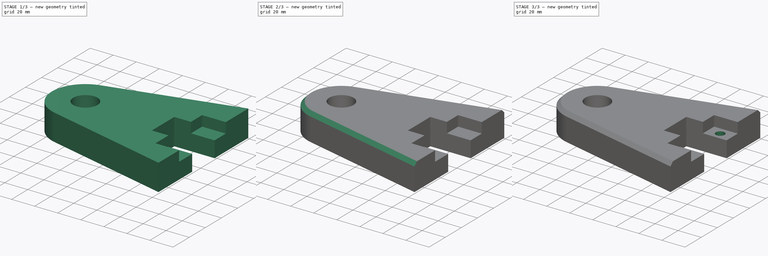
[diagram: build sequence overview — one tinted view per stage of 3, left to right]
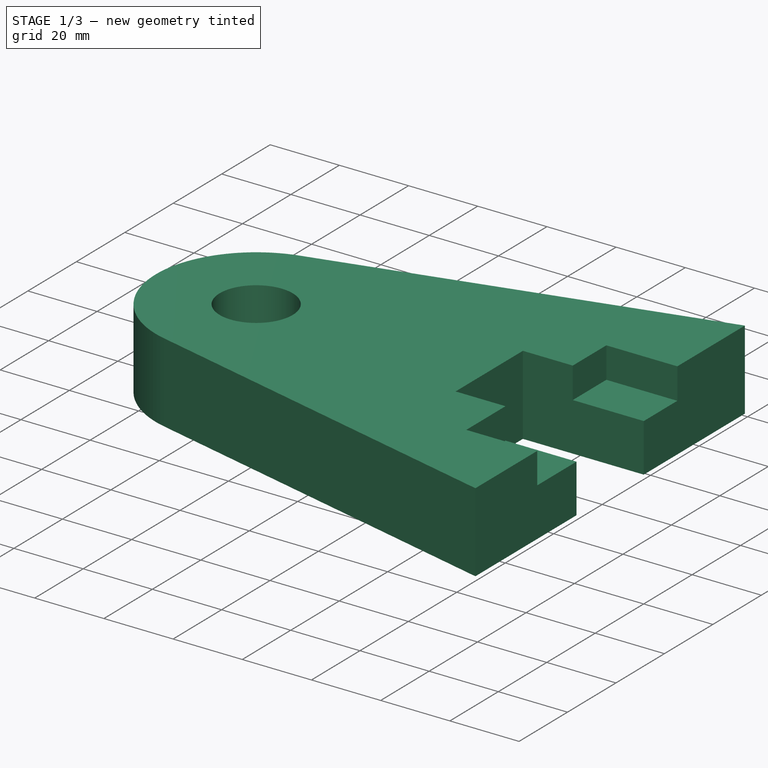
[diagram: stage 1 of 3 — iso view after this stage's code; geometry added in this stage tinted green]
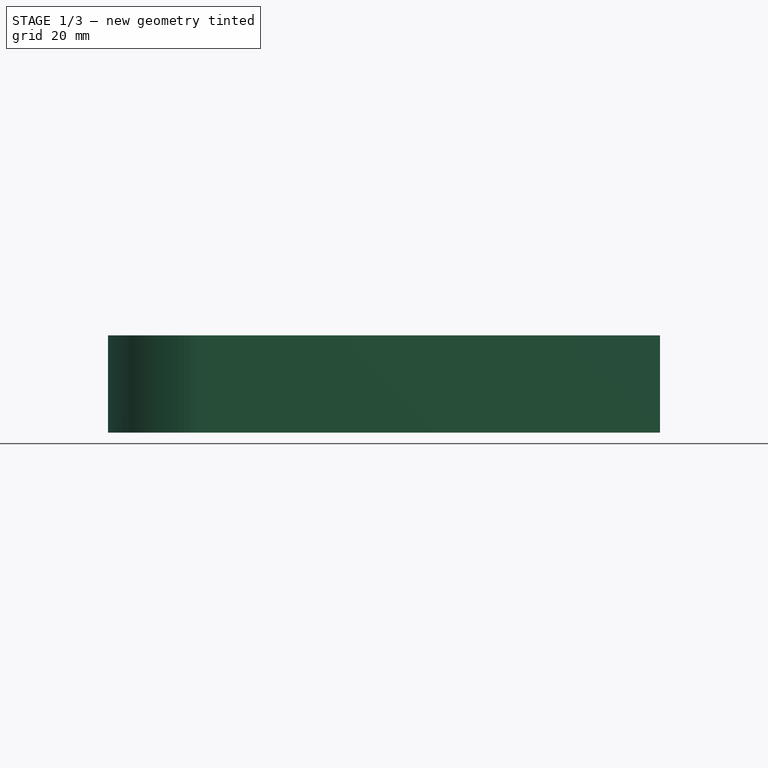
[diagram: stage 1 of 3 — front view after this stage's code; geometry added in this stage tinted green]
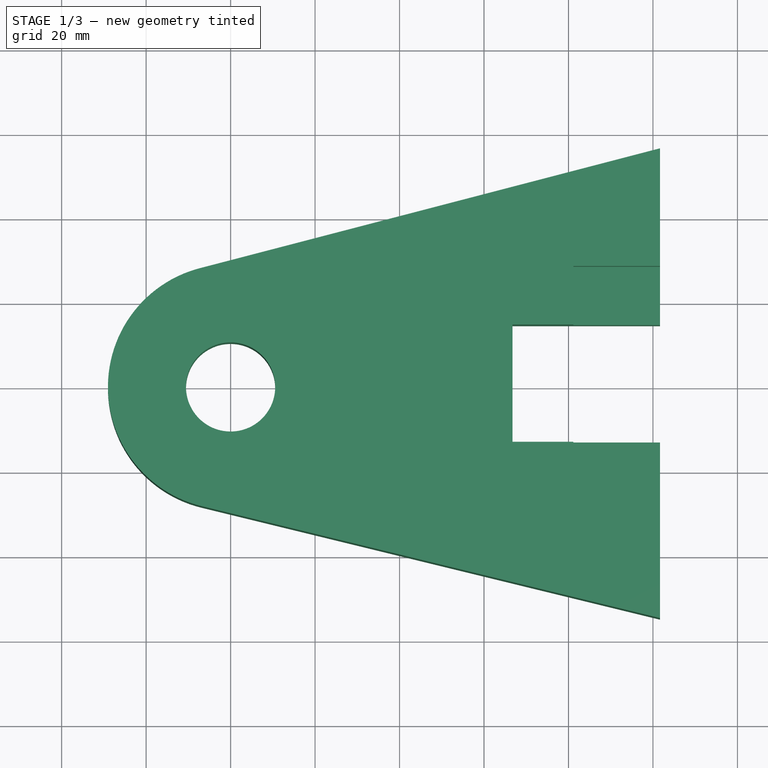
[diagram: stage 1 of 3 — top view after this stage's code; geometry added in this stage tinted green]
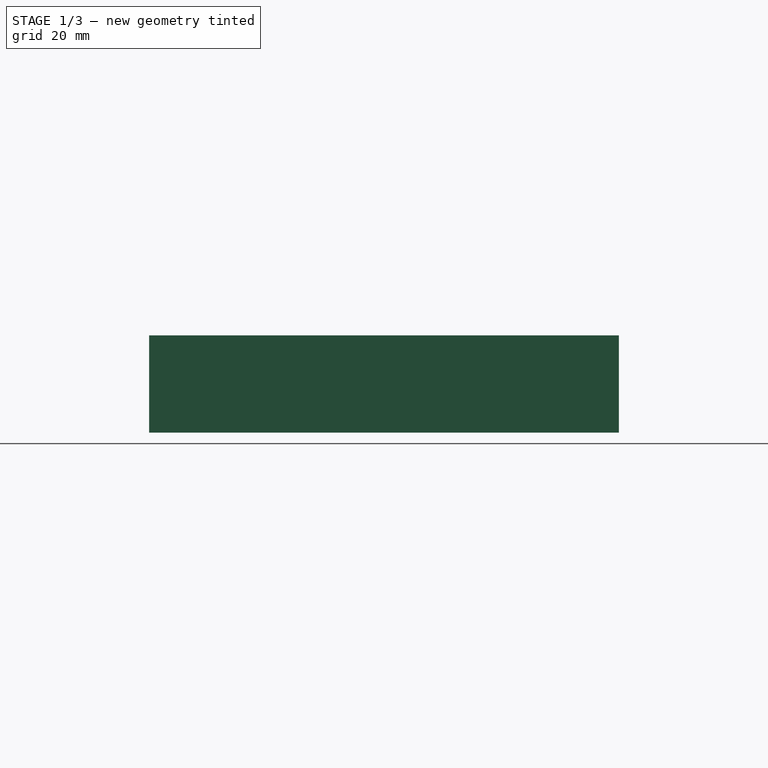
[diagram: stage 1 of 3 — right view after this stage's code; geometry added in this stage tinted green]
FCSTD DOCUMENT  (FreeCAD 0.17R13327 (Git))
Label: testpart
License: All rights reserved
LicenseURL: http://en.wikipedia.org/wiki/All_rights_reserved
objects: Sketcher::SketchObject×3, PartDesign::Pocket×2, PartDesign::Pad×1, PartDesign::Chamfer×1, PartDesign::Mirrored×1, PartDesign::Body×1, Part::Part2DObjectPython×1
note: 13 computed .brp shape members not serialized (recipe doc carries the construction recipe); baked Part::Feature solids carry a one-line shape summary decoded from their .brp

FEATURE [Sketcher::SketchObject] Sketch
  MapMode = 5
  Support = -> [XY_Plane]
  sketch-geometry (9):
    g0: LineSegment StartX=101.683 StartY=56.5088 StartZ=0 EndX=-7.32334 EndY=28.1072 EndZ=0
    g1: ArcOfCircle CenterX=0 CenterY=0 CenterZ=0 NormalX=0 NormalY=0 NormalZ=1 AngleXU=0 Radius=29.0456 StartAngle=1.82568 EndAngle=4.4729
    g2: LineSegment StartX=-6.88988 StartY=-28.2166 StartZ=0 EndX=101.683 EndY=-54.7277 EndZ=0
    g3: LineSegment StartX=101.683 StartY=-54.7277 StartZ=0 EndX=101.683 EndY=-12.9932 EndZ=0
    g4: LineSegment StartX=101.683 StartY=-12.9932 StartZ=0 EndX=66.7393 EndY=-12.9932 EndZ=0
    g5: LineSegment StartX=66.7393 StartY=-12.9932 StartZ=0 EndX=66.7393 EndY=14.7743 EndZ=0
    g6: LineSegment StartX=66.7393 StartY=14.7743 StartZ=0 EndX=101.683 EndY=14.7743 EndZ=0
    g7: LineSegment StartX=101.683 StartY=14.7743 StartZ=0 EndX=101.683 EndY=56.5088 EndZ=0
    g8: Circle CenterX=0 CenterY=0 CenterZ=0 NormalX=0 NormalY=0 NormalZ=1 AngleXU=0 Radius=10.5613
  constraints (17):
    c: Tangent(g0,g1) = -1.5708
    c: Coincident(g1,g2)
    c: Coincident(g2,g3)
    c: Coincident(g3,g4)
    c: Coincident(g4,g5)
    c: Coincident(g5,g6)
    c: Coincident(g6,g7)
    c: Coincident(g7,g0)
    c: Tangent(g2,g1)
    c: Tangent(g7,g3)
    c: Equal(g4,g6)
    c: Perpendicular(g7,g6)
    c: Perpendicular(g3,g4)
    c: Equal(g7,g3)
    c: Coincident(g1,g-1)
    c: Vertical(g5)
    c: Coincident(g8,g-1)
FEATURE [PartDesign::Pad] Pad
  Length = 23
  Length2 = 100
  Profile = -> Sketch
  Type = 0
FEATURE [Sketcher::SketchObject] Sketch001
  MapMode = 5
  Placement = pos=(0,0,23) rot=(0,0,1;0rad)
  Support = -> [Pad]
  sketch-geometry (4):
    g0: LineSegment StartX=81.1649 StartY=28.6266 StartZ=0 EndX=114.821 EndY=28.6266 EndZ=0
    g1: LineSegment StartX=114.821 StartY=28.6266 StartZ=0 EndX=114.821 EndY=-29.1718 EndZ=0
    g2: LineSegment StartX=114.821 StartY=-29.1718 StartZ=0 EndX=81.1649 EndY=-29.1718 EndZ=0
    g3: LineSegment StartX=81.1649 StartY=-29.1718 StartZ=0 EndX=81.1649 EndY=28.6266 EndZ=0
  constraints (8):
    c: Coincident(g0,g1)
    c: Coincident(g1,g2)
    c: Coincident(g2,g3)
    c: Coincident(g3,g0)
    c: Horizontal(g0)
    c: Horizontal(g2)
    c: Vertical(g1)
    c: Vertical(g3)
FEATURE [PartDesign::Pocket] Pocket
  BaseFeature = -> Pad
  Length = 9
  Length2 = 100
  Profile = -> Sketch001
  Type = 0
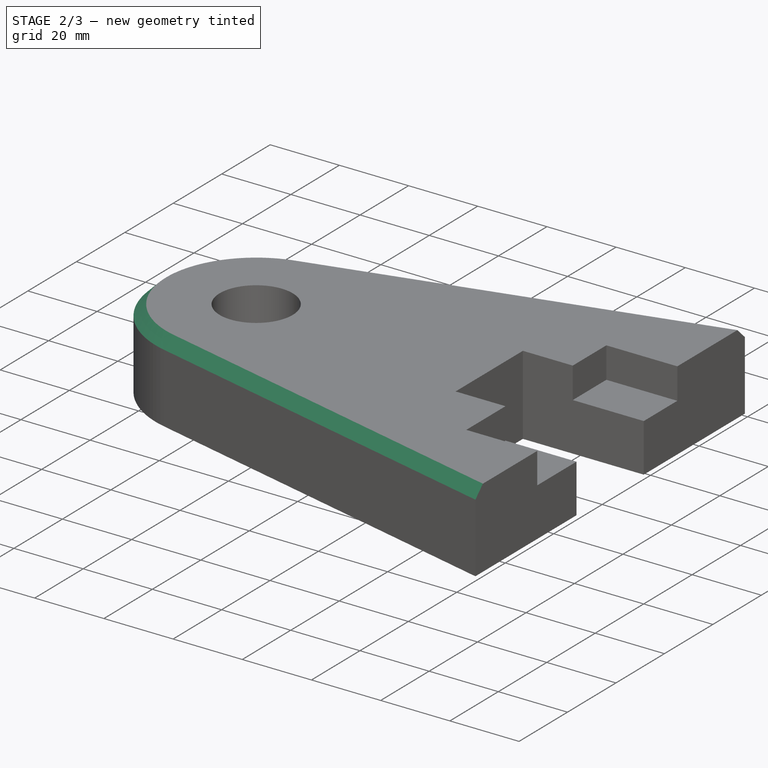
[diagram: stage 2 of 3 — iso view after this stage's code; geometry added in this stage tinted green]
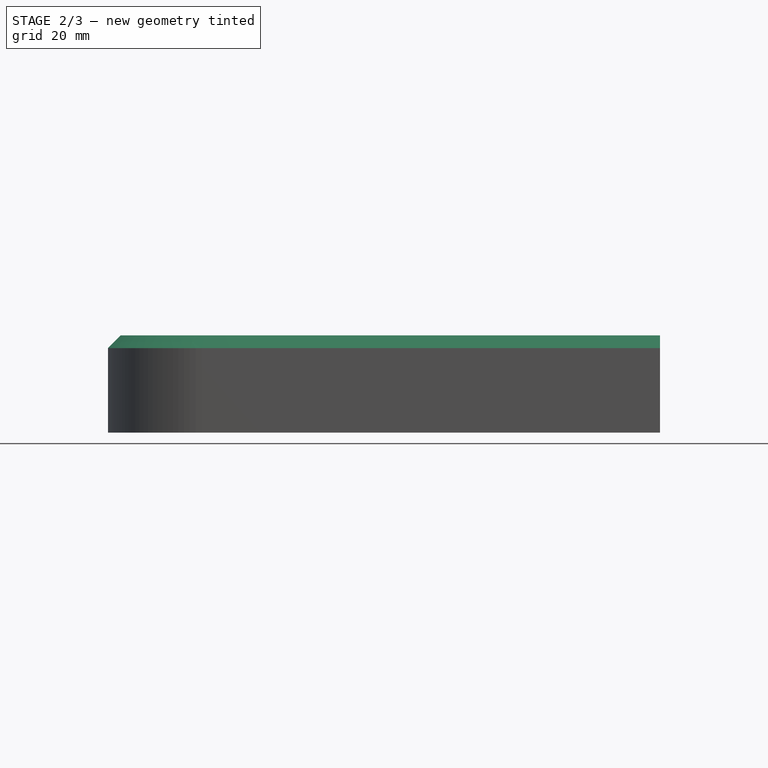
[diagram: stage 2 of 3 — front view after this stage's code; geometry added in this stage tinted green]
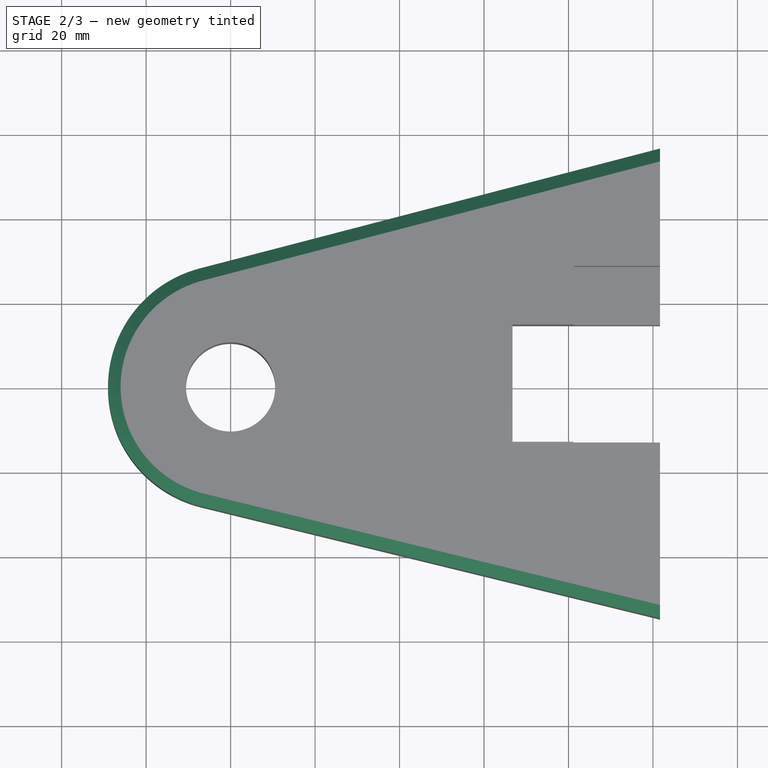
[diagram: stage 2 of 3 — top view after this stage's code; geometry added in this stage tinted green]
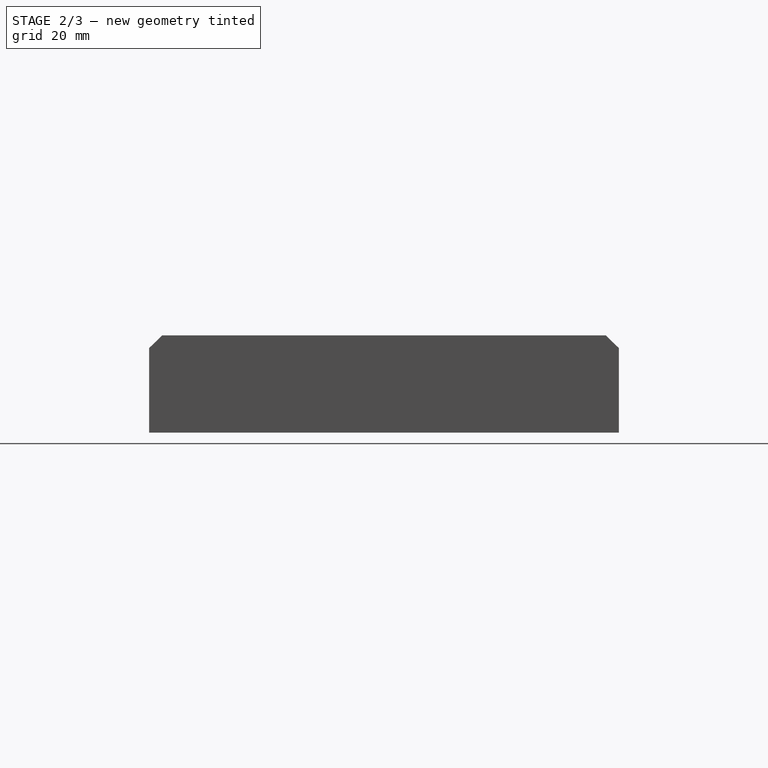
[diagram: stage 2 of 3 — right view after this stage's code; geometry added in this stage tinted green]
FEATURE [PartDesign::Chamfer] Chamfer
  Base = -> Pocket [Edge27,Edge12,Edge4]
  BaseFeature = -> Pocket
  Size = 3
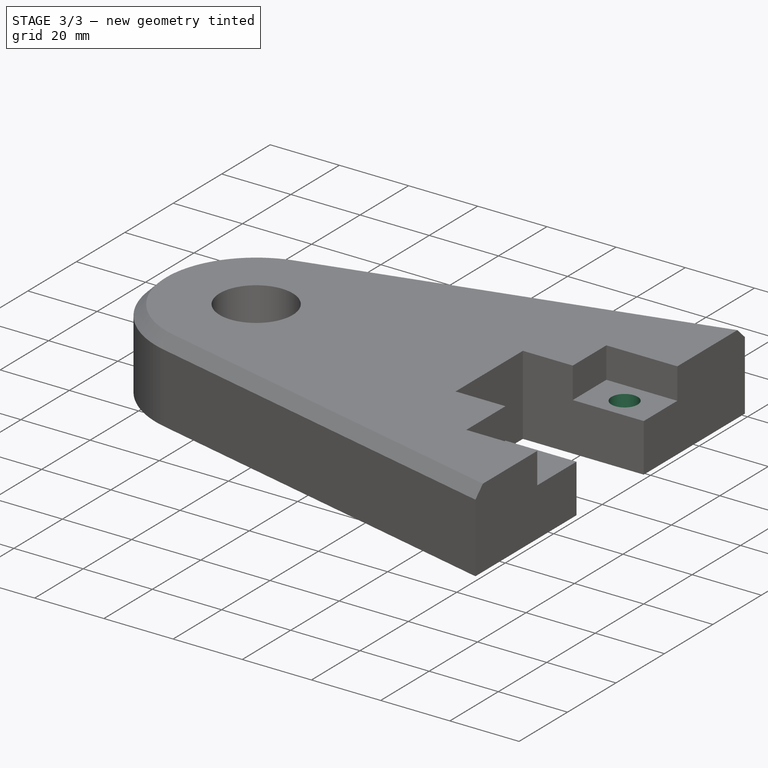
[diagram: stage 3 of 3 — iso view after this stage's code; geometry added in this stage tinted green]
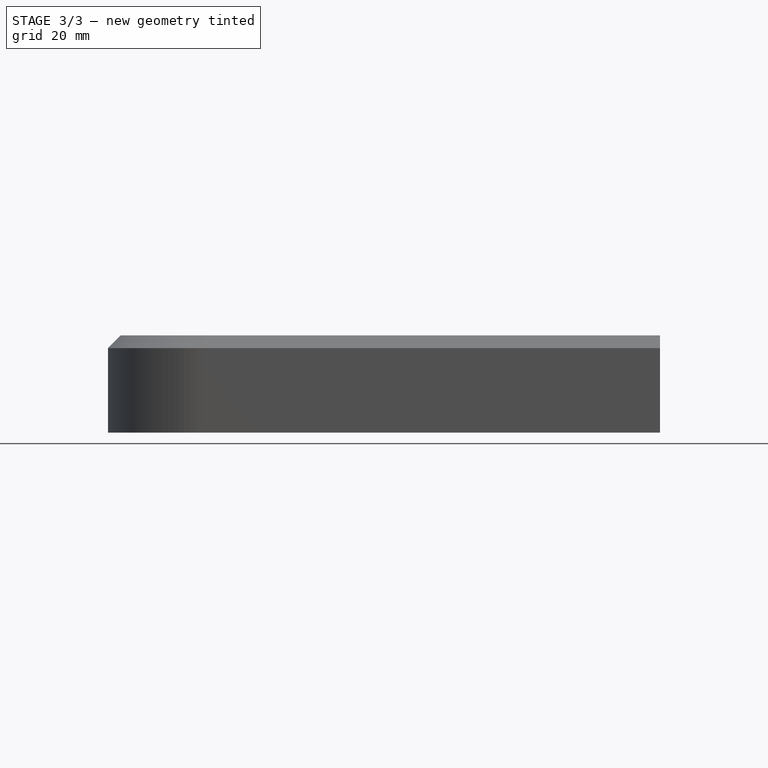
[diagram: stage 3 of 3 — front view after this stage's code; geometry added in this stage tinted green]
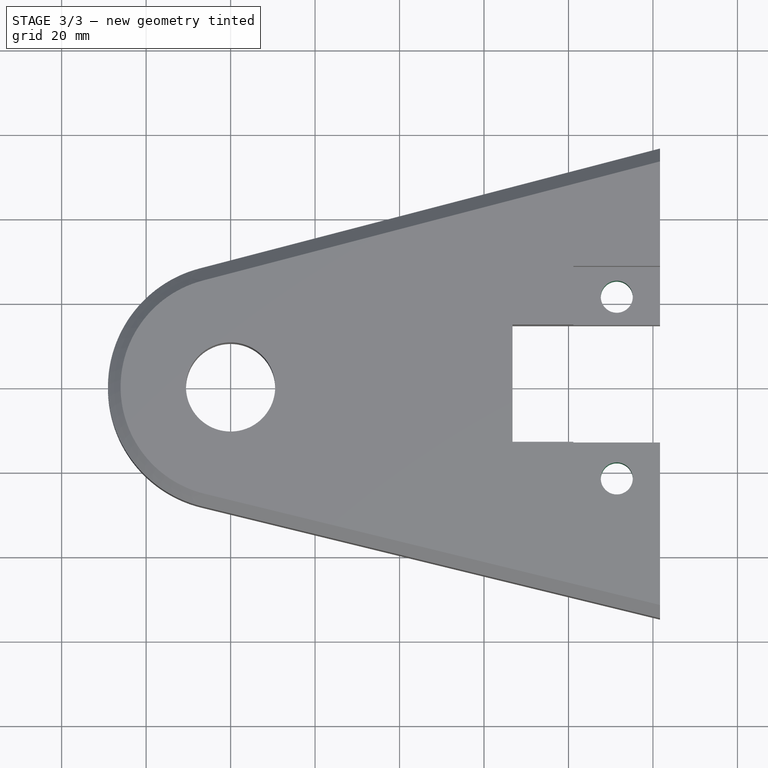
[diagram: stage 3 of 3 — top view after this stage's code; geometry added in this stage tinted green]
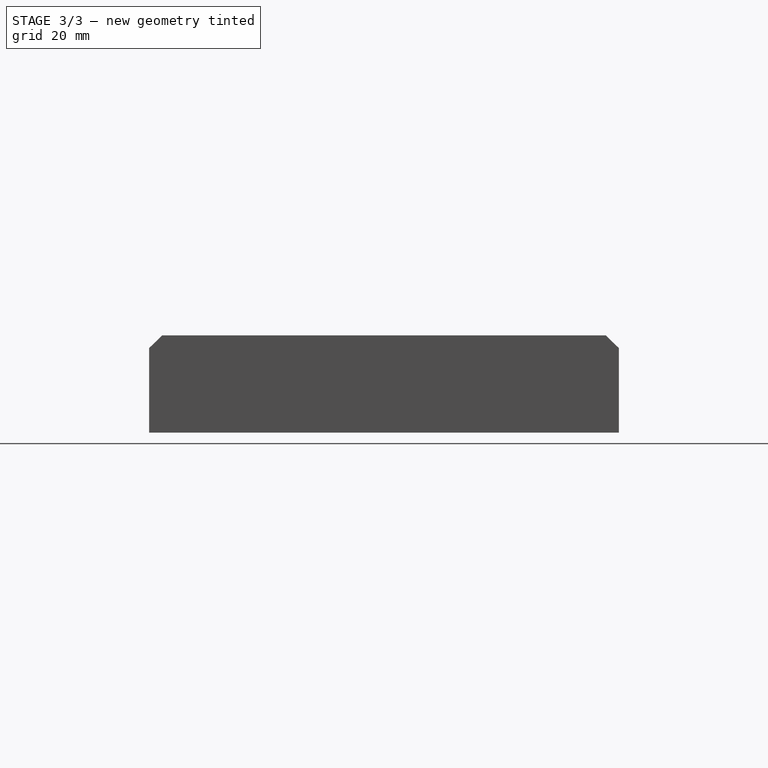
[diagram: stage 3 of 3 — right view after this stage's code; geometry added in this stage tinted green]
FEATURE [Sketcher::SketchObject] Sketch002
  MapMode = 5
  Placement = pos=(0,0,14) rot=(0,0,1;0rad)
  Support = -> [Chamfer]
  sketch-geometry (1):
    g0: Circle CenterX=91.437 CenterY=-21.5113 CenterZ=0 NormalX=0 NormalY=0 NormalZ=1 AngleXU=0 Radius=3.79236
FEATURE [PartDesign::Pocket] Pocket001
  BaseFeature = -> Chamfer
  Length = 16
  Length2 = 100
  Profile = -> Sketch002
  Type = 0
FEATURE [PartDesign::Mirrored] Mirrored
  MirrorPlane = -> XZ_Plane
  Originals = -> [Pocket001]
FEATURE [PartDesign::Body] Body  label="TestPart"
  Group = -> [Sketch,Pad,Sketch001,Pocket,Chamfer,Sketch002,Pocket001,Mirrored]
  Origin = -> Origin
  Tip = -> Mirrored
FEATURE [Part::Part2DObjectPython] ShapeString  # Draft 2D object (typed FeaturePython)
  FontFile = <path>
  Placement = pos=(47.4503,0.783087,23) rot=(0,0,1;0rad)
  Size = 4
  String = hello world
  Tracking = 0
note: 1 file-system path scrubbed to <path> (originals preserved in the JSON sidecar)
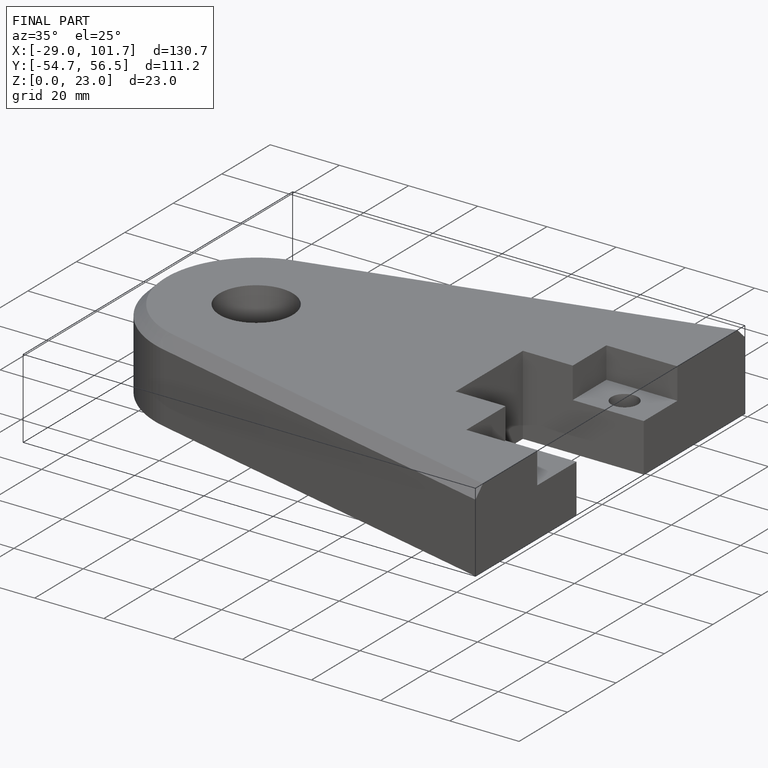
[diagram: finished part — iso view with bounding-box wireframe]
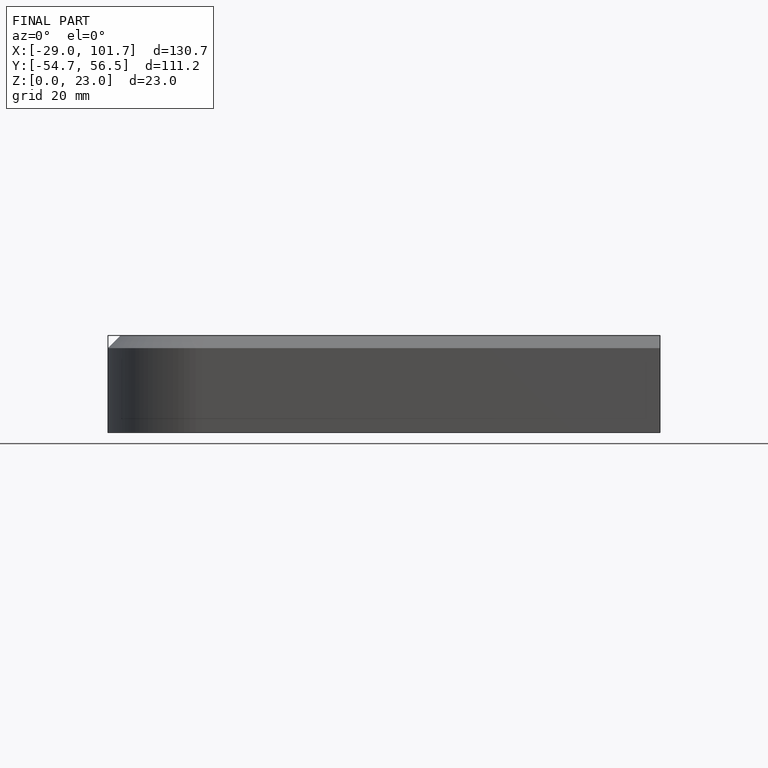
[diagram: finished part — front view with bounding-box wireframe]
